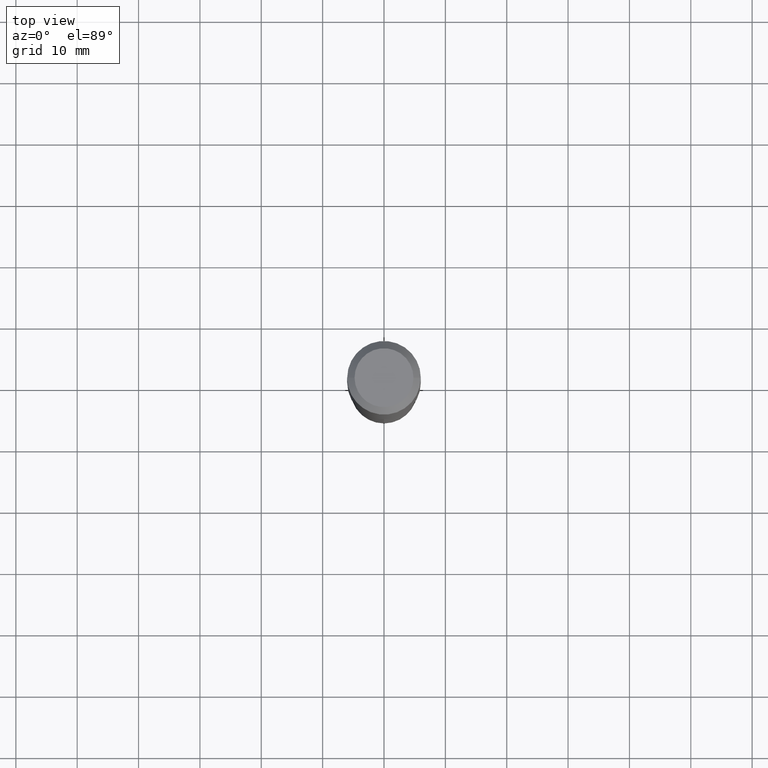
[diagram: clean part render]
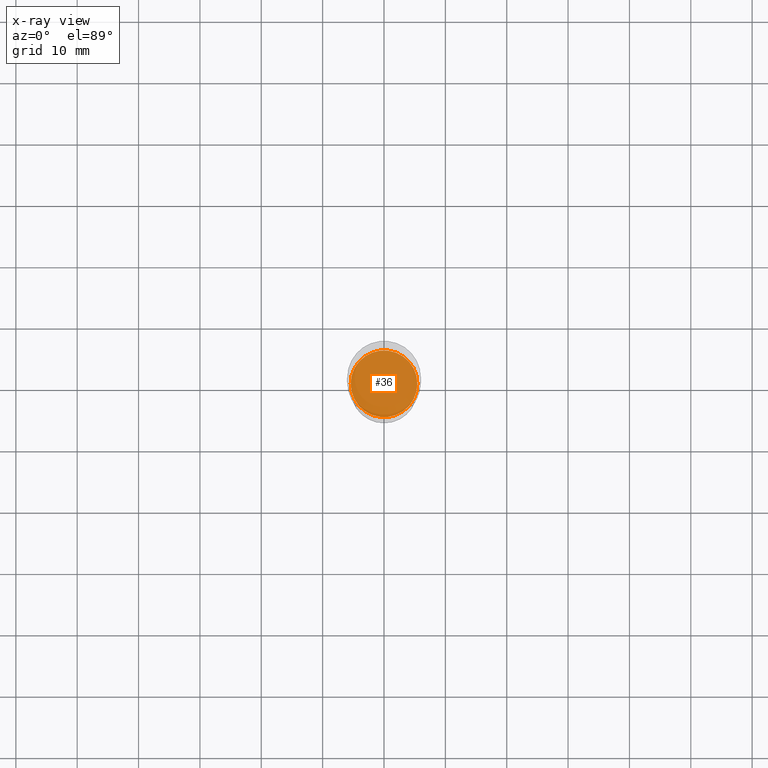
[diagram: x-ray — body ghosted, one internal face saturated and labeled with its STEP entity id]
A machine part, top view, then the same camera in x-ray: the body is ghosted and one INTERNAL B-rep face — a face not visible from any outside direction — is saturated and labeled: STEP entity #36.
In plain terms, the highlighted planar face has unit normal (-0, 0, 1).
Its self-contained STEP definition (entity closure, byte-faithful):
#11 = CIRCLE ( 'NONE', #153, 0.2140499999999999903 ) ;
#25 = CARTESIAN_POINT ( 'NONE',  ( 5.574446143699018056E-29, -7.958831711892947948E-15, -2.279499999999999638 ) ) ;
#36 = ADVANCED_FACE ( 'NONE', ( #76 ), #458, .F. ) ;
#63 = DIRECTION ( 'NONE',  ( 1.000000000000000000, -6.982962677686266711E-15, 0.000000000000000000 ) ) ;
#76 = FACE_OUTER_BOUND ( 'NONE', #77, .T. ) ;
#77 = EDGE_LOOP ( 'NONE', ( #394, #427 ) ) ;
#91 = CIRCLE ( 'NONE', #147, 0.2140499999999999903 ) ;
#108 = CARTESIAN_POINT ( 'NONE',  ( 5.574446143699018056E-29, -7.958831711892947948E-15, -2.279499999999999638 ) ) ;
#122 = VERTEX_POINT ( 'NONE', #430 ) ;
#133 = CARTESIAN_POINT ( 'NONE',  ( 5.574446143699018056E-29, -7.958831711892947948E-15, -2.279499999999999638 ) ) ;
#147 = AXIS2_PLACEMENT_3D ( 'NONE', #25, #478, #63 ) ;
#153 = AXIS2_PLACEMENT_3D ( 'NONE', #133, #279, #325 ) ;
#233 = CARTESIAN_POINT ( 'NONE',  ( 0.2140499999999999903, -9.453534873051693735E-15, -2.279499999999999638 ) ) ;
#261 = VERTEX_POINT ( 'NONE', #233 ) ;
#279 = DIRECTION ( 'NONE',  ( -2.445468806185136597E-29, 3.491481338843145583E-15, 1.000000000000000000 ) ) ;
#325 = DIRECTION ( 'NONE',  ( 1.000000000000000000, -6.982962677686266711E-15, 0.000000000000000000 ) ) ;
#328 = EDGE_CURVE ( 'NONE', #122, #261, #11, .T. ) ;
#385 = DIRECTION ( 'NONE',  ( -2.438088387897960049E-29, 3.491481338843145188E-15, 1.000000000000000000 ) ) ;
#394 = ORIENTED_EDGE ( 'NONE', *, *, #412, .F. ) ;
#412 = EDGE_CURVE ( 'NONE', #261, #122, #91, .T. ) ;
#427 = ORIENTED_EDGE ( 'NONE', *, *, #328, .F. ) ;
#430 = CARTESIAN_POINT ( 'NONE',  ( -0.2140499999999999903, -6.435265758824343354E-15, -2.279499999999999638 ) ) ;
#456 = AXIS2_PLACEMENT_3D ( 'NONE', #108, #385, #459 ) ;
#458 = PLANE ( 'NONE',  #456 ) ;
#459 = DIRECTION ( 'NONE',  ( 1.000000000000000000, -6.982962677686265922E-15, 4.876176775795935793E-29 ) ) ;
#478 = DIRECTION ( 'NONE',  ( -2.445468806185136597E-29, 3.491481338843145583E-15, 1.000000000000000000 ) ) ;